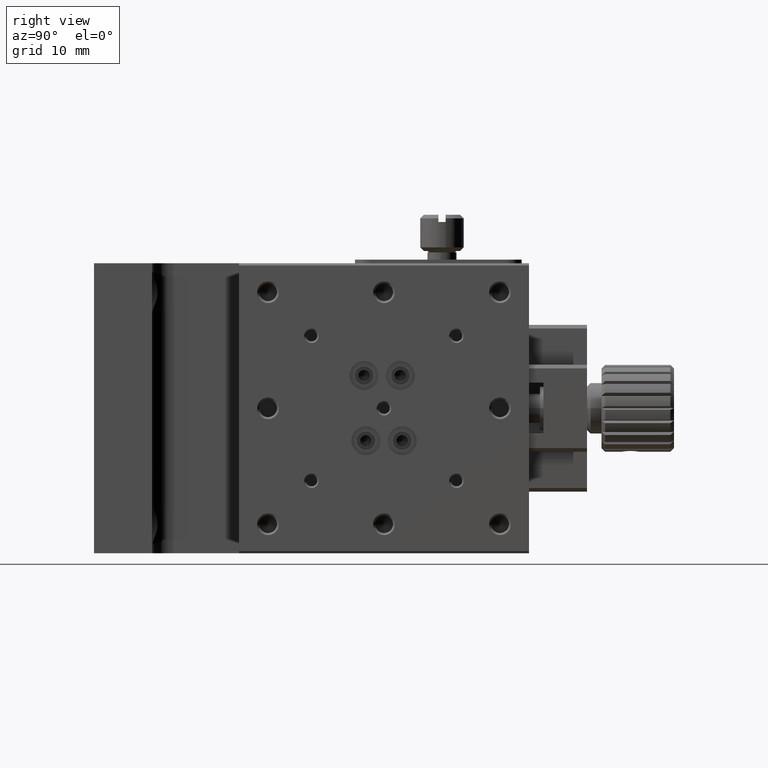
[diagram: clean part render]
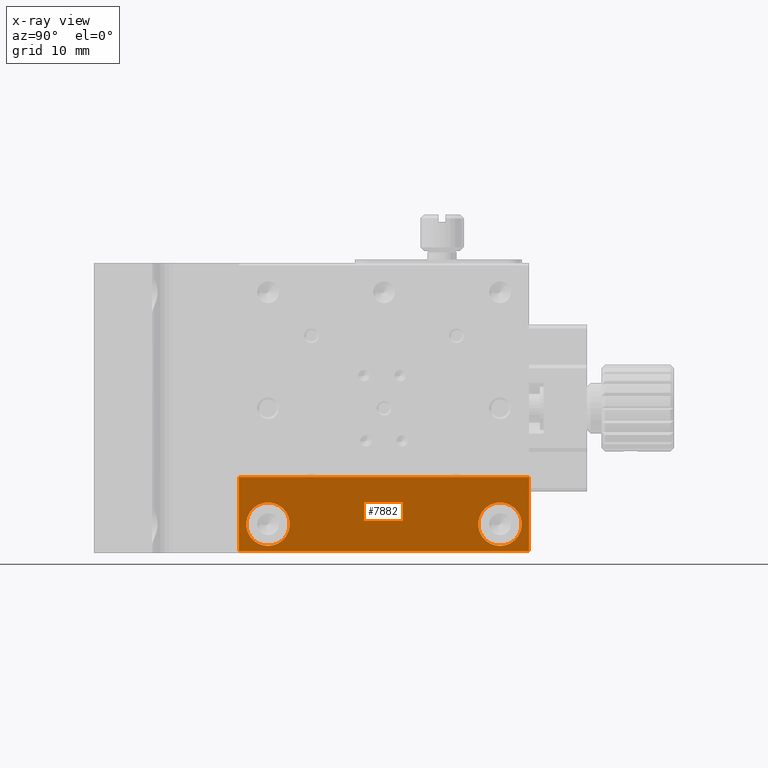
[diagram: x-ray — body ghosted, one internal face saturated and labeled with its STEP entity id]
A machine part, right view, then the same camera in x-ray: the body is ghosted and one INTERNAL B-rep face — a face not visible from any outside direction — is saturated and labeled: STEP entity #7882.
In plain terms, the highlighted planar face has unit normal (-1, -0, 0).
Its self-contained STEP definition (entity closure, byte-faithful):
#421 = CARTESIAN_POINT ( 'NONE',  ( 23.00000000000000000, 55.99999999999999289, -36.00000000000000000 ) ) ;
#789 = DIRECTION ( 'NONE',  ( 0.000000000000000000, -1.000000000000000000, 0.000000000000000000 ) ) ;
#860 = VERTEX_POINT ( 'NONE', #1992 ) ;
#882 = FACE_BOUND ( 'NONE', #10161, .T. ) ;
#1448 = CIRCLE ( 'NONE', #4141, 3.000000000000002665 ) ;
#1520 = VERTEX_POINT ( 'NONE', #3056 ) ;
#1667 = PLANE ( 'NONE',  #10440 ) ;
#1741 = EDGE_CURVE ( 'NONE', #10138, #10138, #5786, .T. ) ;
#1820 = VERTEX_POINT ( 'NONE', #7150 ) ;
#1878 = VERTEX_POINT ( 'NONE', #5047 ) ;
#1992 = CARTESIAN_POINT ( 'NONE',  ( 23.00000000000000000, 19.99999999999999645, -39.69999999999999574 ) ) ;
#2265 = LINE ( 'NONE', #8700, #2512 ) ;
#2348 = FACE_BOUND ( 'NONE', #9856, .T. ) ;
#2402 = ORIENTED_EDGE ( 'NONE', *, *, #7624, .F. ) ;
#2509 = CARTESIAN_POINT ( 'NONE',  ( 23.00000000000000000, 23.99999999999999289, -36.00000000000000000 ) ) ;
#2512 = VECTOR ( 'NONE', #7922, 1000.000000000000000 ) ;
#2560 = DIRECTION ( 'NONE',  ( 0.000000000000000000, 0.000000000000000000, -1.000000000000000000 ) ) ;
#3022 = ORIENTED_EDGE ( 'NONE', *, *, #10295, .T. ) ;
#3056 = CARTESIAN_POINT ( 'NONE',  ( 23.00000000000000000, 19.99999999999999645, -29.50000000000000355 ) ) ;
#3084 = DIRECTION ( 'NONE',  ( 0.000000000000000000, -0.000000000000000000, -1.000000000000000000 ) ) ;
#4076 = LINE ( 'NONE', #9791, #8061 ) ;
#4141 = AXIS2_PLACEMENT_3D ( 'NONE', #2509, #4186, #2560 ) ;
#4145 = DIRECTION ( 'NONE',  ( -0.000000000000000000, -0.000000000000000000, 1.000000000000000000 ) ) ;
#4186 = DIRECTION ( 'NONE',  ( 1.000000000000000000, -0.000000000000000000, -0.000000000000000000 ) ) ;
#4443 = ORIENTED_EDGE ( 'NONE', *, *, #4770, .F. ) ;
#4473 = LINE ( 'NONE', #7701, #5169 ) ;
#4770 = EDGE_CURVE ( 'NONE', #1878, #1878, #1448, .T. ) ;
#4979 = EDGE_LOOP ( 'NONE', ( #3022, #2402, #8419, #8306 ) ) ;
#5047 = CARTESIAN_POINT ( 'NONE',  ( 23.00000000000000000, 23.99999999999999289, -39.00000000000000000 ) ) ;
#5169 = VECTOR ( 'NONE', #789, 1000.000000000000000 ) ;
#5786 = CIRCLE ( 'NONE', #8640, 3.000000000000002665 ) ;
#5905 = DIRECTION ( 'NONE',  ( 1.000000000000000000, -0.000000000000000000, -0.000000000000000000 ) ) ;
#6409 = FACE_OUTER_BOUND ( 'NONE', #4979, .T. ) ;
#6719 = VECTOR ( 'NONE', #4145, 1000.000000000000000 ) ;
#6742 = LINE ( 'NONE', #6786, #6719 ) ;
#6786 = CARTESIAN_POINT ( 'NONE',  ( 23.00000000000000000, 19.99999999999999645, 4.898587196589409870E-15 ) ) ;
#7093 = DIRECTION ( 'NONE',  ( -1.000000000000000000, -0.000000000000000000, 0.000000000000000000 ) ) ;
#7150 = CARTESIAN_POINT ( 'NONE',  ( 23.00000000000000000, 60.00000000000000000, -39.69999999999999574 ) ) ;
#7423 = CARTESIAN_POINT ( 'NONE',  ( 23.00000000000000000, 60.00000000000000000, -29.50000000000000355 ) ) ;
#7624 = EDGE_CURVE ( 'NONE', #860, #1520, #6742, .T. ) ;
#7699 = ORIENTED_EDGE ( 'NONE', *, *, #1741, .F. ) ;
#7701 = CARTESIAN_POINT ( 'NONE',  ( 23.00000000000000000, 19.99999999999999645, -39.69999999999999574 ) ) ;
#7882 = ADVANCED_FACE ( 'NONE', ( #6409, #2348, #882 ), #1667, .F. ) ;
#7922 = DIRECTION ( 'NONE',  ( 0.000000000000000000, -1.000000000000000000, 0.000000000000000000 ) ) ;
#8042 = VERTEX_POINT ( 'NONE', #7423 ) ;
#8061 = VECTOR ( 'NONE', #8775, 1000.000000000000000 ) ;
#8306 = ORIENTED_EDGE ( 'NONE', *, *, #9461, .T. ) ;
#8419 = ORIENTED_EDGE ( 'NONE', *, *, #8963, .F. ) ;
#8430 = DIRECTION ( 'NONE',  ( 0.000000000000000000, 0.000000000000000000, -1.000000000000000000 ) ) ;
#8640 = AXIS2_PLACEMENT_3D ( 'NONE', #421, #5905, #8430 ) ;
#8700 = CARTESIAN_POINT ( 'NONE',  ( 23.00000000000000000, 19.99999999999999645, -29.50000000000000000 ) ) ;
#8775 = DIRECTION ( 'NONE',  ( -0.000000000000000000, -0.000000000000000000, 1.000000000000000000 ) ) ;
#8963 = EDGE_CURVE ( 'NONE', #1820, #860, #4473, .T. ) ;
#9461 = EDGE_CURVE ( 'NONE', #1820, #8042, #4076, .T. ) ;
#9630 = CARTESIAN_POINT ( 'NONE',  ( 23.00000000000000000, 19.99999999999999645, -39.69999999999999574 ) ) ;
#9791 = CARTESIAN_POINT ( 'NONE',  ( 23.00000000000000000, 60.00000000000000000, 4.898587196589409870E-15 ) ) ;
#9856 = EDGE_LOOP ( 'NONE', ( #7699 ) ) ;
#10029 = CARTESIAN_POINT ( 'NONE',  ( 23.00000000000000000, 55.99999999999999289, -39.00000000000000000 ) ) ;
#10138 = VERTEX_POINT ( 'NONE', #10029 ) ;
#10161 = EDGE_LOOP ( 'NONE', ( #4443 ) ) ;
#10295 = EDGE_CURVE ( 'NONE', #8042, #1520, #2265, .T. ) ;
#10440 = AXIS2_PLACEMENT_3D ( 'NONE', #9630, #7093, #3084 ) ;